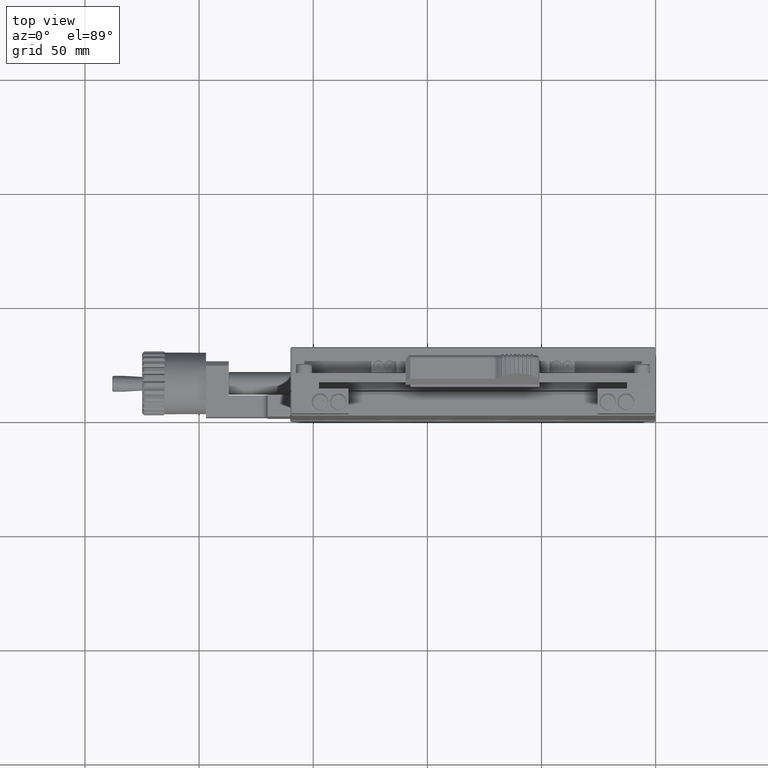
[diagram: clean part render]
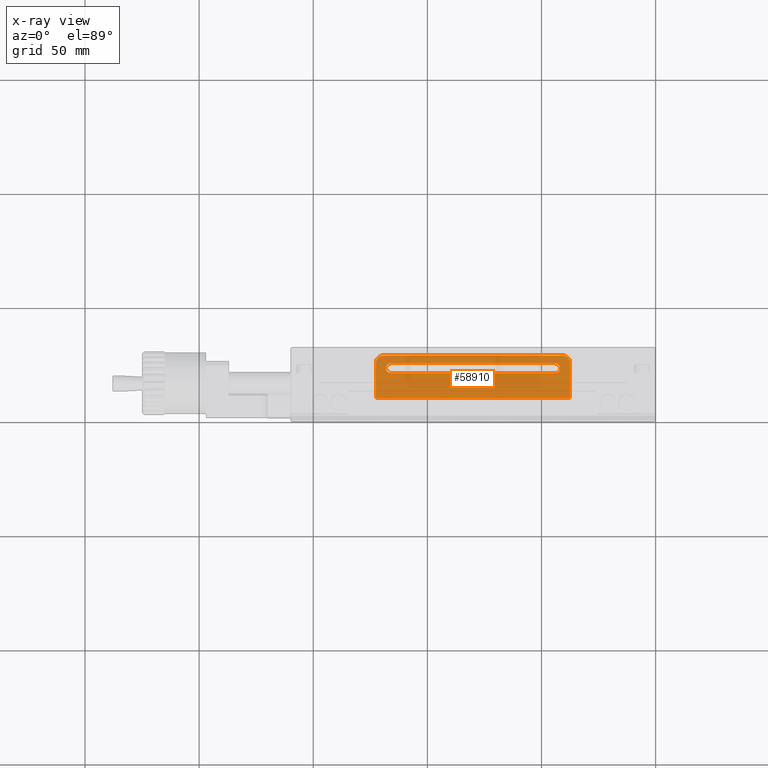
[diagram: x-ray — body ghosted, one internal face saturated and labeled with its STEP entity id]
A machine part, top view, then the same camera in x-ray: the body is ghosted and one INTERNAL B-rep face — a face not visible from any outside direction — is saturated and labeled: STEP entity #58910.
In plain terms, the highlighted planar face has unit normal (0, 0, 1).
Its self-contained STEP definition (entity closure, byte-faithful):
#2727 = ORIENTED_EDGE ( 'NONE', *, *, #10117, .T. ) ;
#2919 = VECTOR ( 'NONE', #31971, 1000.000000000000000 ) ;
#3508 = ORIENTED_EDGE ( 'NONE', *, *, #30823, .T. ) ;
#4010 = CARTESIAN_POINT ( 'NONE',  ( -116.0000000000000000, 25.64999999999999858, -80.00000000000000000 ) ) ;
#6254 = FACE_OUTER_BOUND ( 'NONE', #32186, .T. ) ;
#8007 = CARTESIAN_POINT ( 'NONE',  ( -44.00000000000000000, 23.50000000000000000, -80.00000000000000000 ) ) ;
#8349 = CIRCLE ( 'NONE', #28327, 2.149999999999999023 ) ;
#8478 = ORIENTED_EDGE ( 'NONE', *, *, #31422, .T. ) ;
#8657 = VECTOR ( 'NONE', #35976, 1000.000000000000000 ) ;
#10117 = EDGE_CURVE ( 'NONE', #16637, #51295, #42573, .T. ) ;
#10345 = CARTESIAN_POINT ( 'NONE',  ( -40.49999999999999289, 29.00000000000000000, -80.00000000000000000 ) ) ;
#11686 = VERTEX_POINT ( 'NONE', #32833 ) ;
#12268 = ORIENTED_EDGE ( 'NONE', *, *, #47674, .T. ) ;
#12848 = LINE ( 'NONE', #36964, #2919 ) ;
#15296 = CIRCLE ( 'NONE', #33300, 3.000000000000016431 ) ;
#15812 = EDGE_CURVE ( 'NONE', #17388, #23214, #25341, .T. ) ;
#16616 = EDGE_CURVE ( 'NONE', #30302, #23281, #23156, .T. ) ;
#16637 = VERTEX_POINT ( 'NONE', #53738 ) ;
#17388 = VERTEX_POINT ( 'NONE', #49733 ) ;
#18336 = DIRECTION ( 'NONE',  ( -0.000000000000000000, -0.000000000000000000, -1.000000000000000000 ) ) ;
#20380 = DIRECTION ( 'NONE',  ( 0.000000000000000000, -1.000000000000000000, -0.000000000000000000 ) ) ;
#20646 = DIRECTION ( 'NONE',  ( 0.000000000000000000, 0.000000000000000000, 1.000000000000000000 ) ) ;
#21093 = CARTESIAN_POINT ( 'NONE',  ( -44.00000000000000000, 25.64999999999999858, -80.00000000000000000 ) ) ;
#21179 = CARTESIAN_POINT ( 'NONE',  ( -119.5000000000000142, 26.00000000000000355, -80.00000000000000000 ) ) ;
#21572 = CARTESIAN_POINT ( 'NONE',  ( -37.49999999999999289, 26.00000000000000355, -80.00000000000000000 ) ) ;
#22586 = VERTEX_POINT ( 'NONE', #21093 ) ;
#23156 = LINE ( 'NONE', #42287, #59237 ) ;
#23214 = VERTEX_POINT ( 'NONE', #51339 ) ;
#23281 = VERTEX_POINT ( 'NONE', #46330 ) ;
#23434 = VERTEX_POINT ( 'NONE', #30200 ) ;
#25341 = LINE ( 'NONE', #39137, #45145 ) ;
#26472 = DIRECTION ( 'NONE',  ( 0.000000000000000000, 0.000000000000000000, 1.000000000000000000 ) ) ;
#26582 = PLANE ( 'NONE',  #56713 ) ;
#27038 = EDGE_CURVE ( 'NONE', #11686, #30302, #42039, .T. ) ;
#28327 = AXIS2_PLACEMENT_3D ( 'NONE', #8007, #18336, #61292 ) ;
#28422 = ORIENTED_EDGE ( 'NONE', *, *, #16616, .T. ) ;
#29161 = CARTESIAN_POINT ( 'NONE',  ( -122.5000000000000000, 26.00000000000000355, -80.00000000000000000 ) ) ;
#30200 = CARTESIAN_POINT ( 'NONE',  ( -122.5000000000000000, 26.00000000000000355, -80.00000000000000000 ) ) ;
#30302 = VERTEX_POINT ( 'NONE', #10345 ) ;
#30823 = EDGE_CURVE ( 'NONE', #23281, #23434, #15296, .T. ) ;
#31376 = VECTOR ( 'NONE', #20380, 1000.000000000000000 ) ;
#31422 = EDGE_CURVE ( 'NONE', #51295, #58144, #57241, .T. ) ;
#31971 = DIRECTION ( 'NONE',  ( 1.000000000000000000, 0.000000000000000000, -0.000000000000000000 ) ) ;
#32051 = DIRECTION ( 'NONE',  ( -0.000000000000000000, -0.000000000000000000, -1.000000000000000000 ) ) ;
#32186 = EDGE_LOOP ( 'NONE', ( #28422, #3508, #12268, #48124, #46189, #34086 ) ) ;
#32833 = CARTESIAN_POINT ( 'NONE',  ( -37.49999999999999289, 26.00000000000000355, -80.00000000000000000 ) ) ;
#33300 = AXIS2_PLACEMENT_3D ( 'NONE', #21179, #26472, #45605 ) ;
#33791 = DIRECTION ( 'NONE',  ( 0.000000000000000000, 0.000000000000000000, 1.000000000000000000 ) ) ;
#34086 = ORIENTED_EDGE ( 'NONE', *, *, #27038, .T. ) ;
#34422 = DIRECTION ( 'NONE',  ( -1.000000000000000000, -0.000000000000000000, 0.000000000000000000 ) ) ;
#34737 = DIRECTION ( 'NONE',  ( 1.000000000000000000, 0.000000000000000000, -0.000000000000000000 ) ) ;
#34836 = VECTOR ( 'NONE', #52903, 1000.000000000000000 ) ;
#35976 = DIRECTION ( 'NONE',  ( -0.000000000000000000, 1.000000000000000000, 0.000000000000000000 ) ) ;
#36964 = CARTESIAN_POINT ( 'NONE',  ( -119.5000000000000142, 25.64999999999999858, -80.00000000000000000 ) ) ;
#39137 = CARTESIAN_POINT ( 'NONE',  ( -160.0000000000000000, 10.50000000000000000, -80.00000000000000000 ) ) ;
#39754 = FACE_BOUND ( 'NONE', #45211, .T. ) ;
#42039 = CIRCLE ( 'NONE', #47184, 3.000000000000002665 ) ;
#42287 = CARTESIAN_POINT ( 'NONE',  ( -119.5000000000000142, 29.00000000000000000, -80.00000000000000000 ) ) ;
#42573 = LINE ( 'NONE', #56662, #34836 ) ;
#42594 = DIRECTION ( 'NONE',  ( 1.000000000000000000, 0.000000000000000000, 0.000000000000000000 ) ) ;
#43207 = AXIS2_PLACEMENT_3D ( 'NONE', #60289, #32051, #55864 ) ;
#44209 = LINE ( 'NONE', #29161, #31376 ) ;
#44415 = ORIENTED_EDGE ( 'NONE', *, *, #57816, .T. ) ;
#45145 = VECTOR ( 'NONE', #34422, 1000.000000000000000 ) ;
#45211 = EDGE_LOOP ( 'NONE', ( #2727, #8478, #44415, #49410 ) ) ;
#45415 = LINE ( 'NONE', #21572, #8657 ) ;
#45605 = DIRECTION ( 'NONE',  ( 1.000000000000000000, 0.000000000000000000, 0.000000000000000000 ) ) ;
#46189 = ORIENTED_EDGE ( 'NONE', *, *, #59001, .T. ) ;
#46330 = CARTESIAN_POINT ( 'NONE',  ( -119.5000000000000142, 29.00000000000000355, -80.00000000000000000 ) ) ;
#47184 = AXIS2_PLACEMENT_3D ( 'NONE', #47909, #33791, #42594 ) ;
#47186 = EDGE_CURVE ( 'NONE', #22586, #16637, #8349, .T. ) ;
#47250 = CARTESIAN_POINT ( 'NONE',  ( -116.0000000000000000, 21.35000000000000142, -80.00000000000000000 ) ) ;
#47674 = EDGE_CURVE ( 'NONE', #23434, #23214, #44209, .T. ) ;
#47909 = CARTESIAN_POINT ( 'NONE',  ( -40.50000000000000000, 26.00000000000000355, -80.00000000000000000 ) ) ;
#48124 = ORIENTED_EDGE ( 'NONE', *, *, #15812, .F. ) ;
#49410 = ORIENTED_EDGE ( 'NONE', *, *, #47186, .T. ) ;
#49733 = CARTESIAN_POINT ( 'NONE',  ( -37.50000000000000711, 10.50000000000000000, -80.00000000000000000 ) ) ;
#51295 = VERTEX_POINT ( 'NONE', #47250 ) ;
#51339 = CARTESIAN_POINT ( 'NONE',  ( -122.5000000000000000, 10.50000000000000000, -80.00000000000000000 ) ) ;
#52903 = DIRECTION ( 'NONE',  ( -1.000000000000000000, -0.000000000000000000, 0.000000000000000000 ) ) ;
#53738 = CARTESIAN_POINT ( 'NONE',  ( -44.00000000000000000, 21.35000000000000142, -80.00000000000000000 ) ) ;
#55864 = DIRECTION ( 'NONE',  ( 1.000000000000000000, 0.000000000000000000, 0.000000000000000000 ) ) ;
#56662 = CARTESIAN_POINT ( 'NONE',  ( -119.5000000000000142, 21.35000000000000142, -80.00000000000000000 ) ) ;
#56713 = AXIS2_PLACEMENT_3D ( 'NONE', #58890, #20646, #34737 ) ;
#57241 = CIRCLE ( 'NONE', #43207, 2.149999999999999023 ) ;
#57816 = EDGE_CURVE ( 'NONE', #58144, #22586, #12848, .T. ) ;
#58144 = VERTEX_POINT ( 'NONE', #4010 ) ;
#58890 = CARTESIAN_POINT ( 'NONE',  ( -119.5000000000000142, 26.00000000000000355, -80.00000000000000000 ) ) ;
#58910 = ADVANCED_FACE ( 'NONE', ( #6254, #39754 ), #26582, .T. ) ;
#59001 = EDGE_CURVE ( 'NONE', #17388, #11686, #45415, .T. ) ;
#59237 = VECTOR ( 'NONE', #61420, 1000.000000000000000 ) ;
#60289 = CARTESIAN_POINT ( 'NONE',  ( -116.0000000000000000, 23.50000000000000000, -80.00000000000000000 ) ) ;
#61292 = DIRECTION ( 'NONE',  ( 1.000000000000000000, 0.000000000000000000, 0.000000000000000000 ) ) ;
#61420 = DIRECTION ( 'NONE',  ( -1.000000000000000000, -0.000000000000000000, 0.000000000000000000 ) ) ;